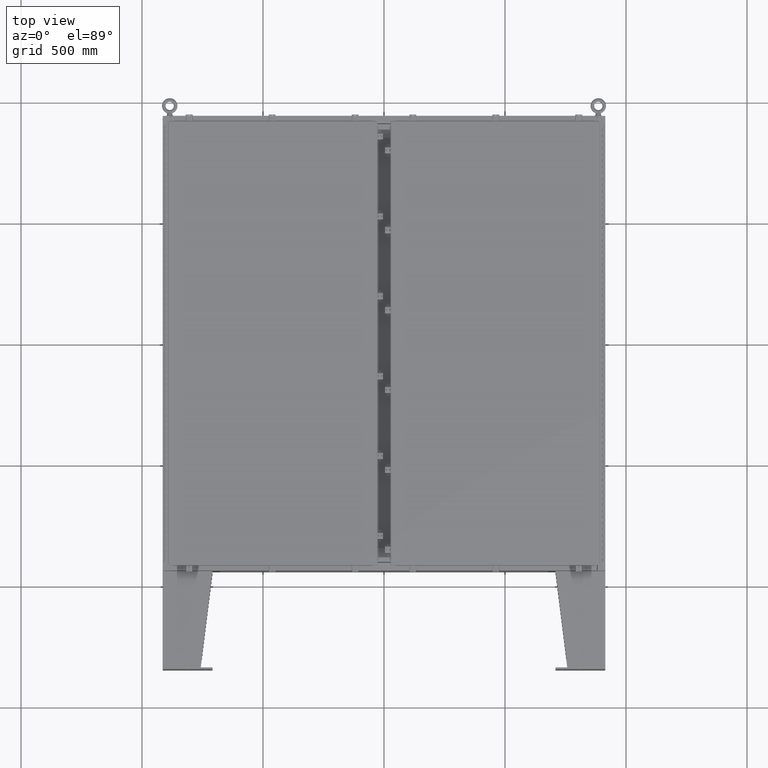
[diagram: clean part render]
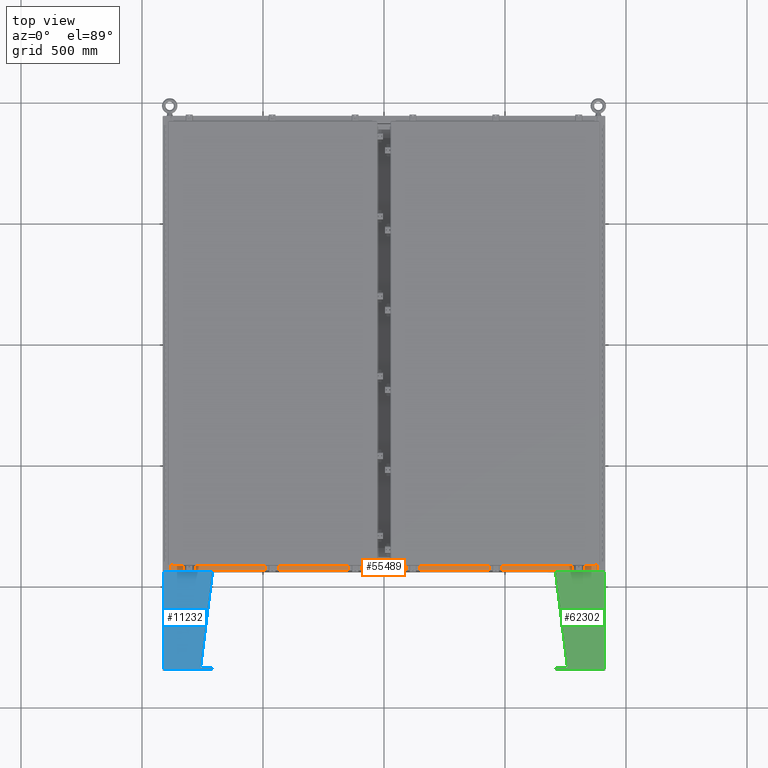
[diagram: same view with three faces highlighted in distinct colors, each labeled with its STEP entity id]
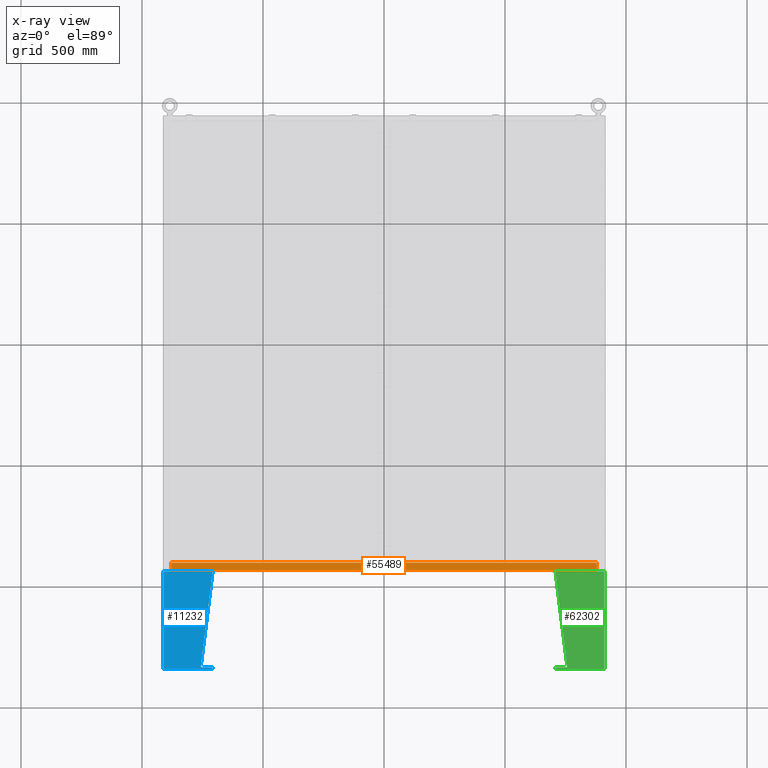
[diagram: x-ray of the same camera — body ghosted, the three highlighted faces saturated]
A machine part, top view with three faces highlighted in distinct colors.
The next image is the same camera in x-ray (body ghosted, the three faces saturated) — at least one of them is partly hidden behind the body in this view.
Their STEP definitions:

[orange] entity #55489 — the highlighted planar face has unit normal (0, -0, 1).
#680 = CARTESIAN_POINT ( 'NONE',  ( -1.750000000000002400, -1.287299999999986100, 7.999999999999996400 ) ) ;
#688 = VERTEX_POINT ( 'NONE', #680 ) ;
#1500 = DIRECTION ( 'NONE',  ( -1.003748580867023100E-031, 1.000000000000000000, -3.566381192773190000E-015 ) ) ;
#5526 = DIRECTION ( 'NONE',  ( 0.0000000000000000000, 3.566381192773190000E-015, 1.000000000000000000 ) ) ;
#5916 = VERTEX_POINT ( 'NONE', #26998 ) ;
#7072 = ORIENTED_EDGE ( 'NONE', *, *, #44481, .F. ) ;
#7223 = DIRECTION ( 'NONE',  ( -1.000000000000000000, 9.721131394294625500E-032, 0.0000000000000000000 ) ) ;
#8438 = CARTESIAN_POINT ( 'NONE',  ( 34.63720000000000700, -1.287299999999994800, 7.999999999999990200 ) ) ;
#9785 = LINE ( 'NONE', #69958, #60109 ) ;
#15739 = CARTESIAN_POINT ( 'NONE',  ( -34.63719999999998600, -0.08769999999996530600, 8.000000000000001800 ) ) ;
#20137 = LINE ( 'NONE', #62807, #66515 ) ;
#23539 = VECTOR ( 'NONE', #30975, 39.37007874015748100 ) ;
#23707 = CARTESIAN_POINT ( 'NONE',  ( 34.63720000000000700, -1.287299999999994800, 7.999999999999990200 ) ) ;
#26998 = CARTESIAN_POINT ( 'NONE',  ( 34.63720000000000700, -0.08770000000000026400, 8.000000000000001800 ) ) ;
#27357 = VERTEX_POINT ( 'NONE', #44006 ) ;
#27713 = ORIENTED_EDGE ( 'NONE', *, *, #71391, .T. ) ;
#28522 = VECTOR ( 'NONE', #62326, 39.37007874015748100 ) ;
#29492 = EDGE_CURVE ( 'NONE', #688, #39522, #80694, .T. ) ;
#30611 = ORIENTED_EDGE ( 'NONE', *, *, #34418, .F. ) ;
#30975 = DIRECTION ( 'NONE',  ( -1.000000000000000000, 9.721131394294625500E-032, 0.0000000000000000000 ) ) ;
#32162 = DIRECTION ( 'NONE',  ( -1.000000000000000000, -6.244223985518316900E-016, -2.366582715663035400E-030 ) ) ;
#34418 = EDGE_CURVE ( 'NONE', #27357, #36966, #77464, .T. ) ;
#36966 = VERTEX_POINT ( 'NONE', #76121 ) ;
#37075 = PLANE ( 'NONE',  #49226 ) ;
#38330 = LINE ( 'NONE', #75080, #23539 ) ;
#39522 = VERTEX_POINT ( 'NONE', #53075 ) ;
#43419 = ORIENTED_EDGE ( 'NONE', *, *, #29492, .F. ) ;
#44006 = CARTESIAN_POINT ( 'NONE',  ( 34.63720000000000700, -1.287299999999990300, 7.999999999999990200 ) ) ;
#44481 = EDGE_CURVE ( 'NONE', #36966, #688, #9785, .T. ) ;
#47574 = FACE_OUTER_BOUND ( 'NONE', #75326, .T. ) ;
#49226 = AXIS2_PLACEMENT_3D ( 'NONE', #81057, #5526, #49739 ) ;
#49739 = DIRECTION ( 'NONE',  ( 1.003748580867050900E-031, -1.000000000000000000, 3.566381192773190000E-015 ) ) ;
#53075 = CARTESIAN_POINT ( 'NONE',  ( -34.63719999999998600, -1.287299999999955500, 8.000000000000005300 ) ) ;
#54252 = ORIENTED_EDGE ( 'NONE', *, *, #79956, .F. ) ;
#55489 = ADVANCED_FACE ( 'NONE', ( #47574 ), #37075, .T. ) ;
#56347 = DIRECTION ( 'NONE',  ( 1.003748580867023100E-031, -1.000000000000000000, 3.566381192773190000E-015 ) ) ;
#60109 = VECTOR ( 'NONE', #32162, 39.37007874015748100 ) ;
#60714 = VECTOR ( 'NONE', #7223, 39.37007874015748100 ) ;
#62326 = DIRECTION ( 'NONE',  ( -1.000000000000000000, 9.721131394294625500E-032, 0.0000000000000000000 ) ) ;
#62798 = LINE ( 'NONE', #77118, #75554 ) ;
#62807 = CARTESIAN_POINT ( 'NONE',  ( 34.63720000000000700, -1.300300000000001300, 8.000000000000005300 ) ) ;
#66515 = VECTOR ( 'NONE', #56347, 39.37007874015748100 ) ;
#68888 = VERTEX_POINT ( 'NONE', #15739 ) ;
#69958 = CARTESIAN_POINT ( 'NONE',  ( -1.349971500130318000E-016, -1.287299999999986100, 7.999999999999996400 ) ) ;
#71391 = EDGE_CURVE ( 'NONE', #5916, #68888, #38330, .T. ) ;
#71984 = ORIENTED_EDGE ( 'NONE', *, *, #78620, .F. ) ;
#75080 = CARTESIAN_POINT ( 'NONE',  ( 7.764378988395785700E-030, -0.08769999999999589200, 8.000000000000001800 ) ) ;
#75326 = EDGE_LOOP ( 'NONE', ( #71984, #43419, #7072, #30611, #54252, #27713 ) ) ;
#75554 = VECTOR ( 'NONE', #1500, 39.37007874015748100 ) ;
#76121 = CARTESIAN_POINT ( 'NONE',  ( 1.749999999999997600, -1.287299999999981700, 7.999999999999996400 ) ) ;
#77118 = CARTESIAN_POINT ( 'NONE',  ( -34.63719999999998600, -0.07469999999996300400, 8.000000000000001800 ) ) ;
#77464 = LINE ( 'NONE', #8438, #60714 ) ;
#78620 = EDGE_CURVE ( 'NONE', #39522, #68888, #62798, .T. ) ;
#79956 = EDGE_CURVE ( 'NONE', #5916, #27357, #20137, .T. ) ;
#80694 = LINE ( 'NONE', #23707, #28522 ) ;
#81057 = CARTESIAN_POINT ( 'NONE',  ( -7.764378988395785700E-030, 3.059669752903974500E-014, 8.000000000000001800 ) ) ;

[blue] entity #11232 — the highlighted planar face has unit normal (0, 0, -1).
#1431 = VECTOR ( 'NONE', #72481, 39.37007874015748100 ) ;
#2144 = VERTEX_POINT ( 'NONE', #41538 ) ;
#9872 = LINE ( 'NONE', #59743, #76973 ) ;
#11232 = ADVANCED_FACE ( 'NONE', ( #56621 ), #45035, .F. ) ;
#11372 = DIRECTION ( 'NONE',  ( 3.550958521948399600E-015, -2.224516740755108100E-031, -1.000000000000000000 ) ) ;
#11694 = VERTEX_POINT ( 'NONE', #21381 ) ;
#12868 = LINE ( 'NONE', #30912, #29652 ) ;
#13890 = CARTESIAN_POINT ( 'NONE',  ( -7.999999999999999100, -7.999999999999923600, 0.03899999999999813300 ) ) ;
#14992 = LINE ( 'NONE', #33398, #27792 ) ;
#21332 = VERTEX_POINT ( 'NONE', #74636 ) ;
#21381 = CARTESIAN_POINT ( 'NONE',  ( -8.000000000000026600, -7.999999999999923600, 8.000999999999992300 ) ) ;
#21908 = CARTESIAN_POINT ( 'NONE',  ( -8.000000000000026600, 8.000000000000067500, 8.000999999999992300 ) ) ;
#22252 = LINE ( 'NONE', #78710, #1431 ) ;
#26205 = VERTEX_POINT ( 'NONE', #13890 ) ;
#27792 = VECTOR ( 'NONE', #58421, 39.37007874015748100 ) ;
#29652 = VECTOR ( 'NONE', #55901, 39.37007874015748100 ) ;
#30774 = LINE ( 'NONE', #71311, #43549 ) ;
#30912 = CARTESIAN_POINT ( 'NONE',  ( -8.000000000000026600, 8.000000000000067500, 8.000999999999992300 ) ) ;
#31295 = EDGE_LOOP ( 'NONE', ( #36323, #39320, #64177, #59302, #66921, #78955 ) ) ;
#33398 = CARTESIAN_POINT ( 'NONE',  ( -8.000000000000026600, -7.749999999999928900, 8.000999999999999400 ) ) ;
#33577 = LINE ( 'NONE', #72987, #50311 ) ;
#36323 = ORIENTED_EDGE ( 'NONE', *, *, #63911, .T. ) ;
#38885 = VERTEX_POINT ( 'NONE', #44511 ) ;
#39320 = ORIENTED_EDGE ( 'NONE', *, *, #53435, .T. ) ;
#41276 = DIRECTION ( 'NONE',  ( 9.466330862652141700E-029, -1.198498701752819500E-031, -1.000000000000000000 ) ) ;
#41538 = CARTESIAN_POINT ( 'NONE',  ( -8.000000000000012400, 7.857000000000068600, 0.03899999999997191100 ) ) ;
#43549 = VECTOR ( 'NONE', #77544, 39.37007874015748900 ) ;
#44107 = EDGE_CURVE ( 'NONE', #26205, #2144, #33577, .T. ) ;
#44511 = CARTESIAN_POINT ( 'NONE',  ( -8.000000000000026600, 7.857000000000068600, 8.000999999999999400 ) ) ;
#45035 = PLANE ( 'NONE',  #60257 ) ;
#46872 = EDGE_CURVE ( 'NONE', #26205, #11694, #22252, .T. ) ;
#50311 = VECTOR ( 'NONE', #60263, 39.37007874015748100 ) ;
#50680 = DIRECTION ( 'NONE',  ( 1.000000000000000000, 4.465013461865369200E-059, 3.550958521948399600E-015 ) ) ;
#53435 = EDGE_CURVE ( 'NONE', #81451, #38885, #30774, .T. ) ;
#55901 = DIRECTION ( 'NONE',  ( 0.0000000000000000000, 1.000000000000000000, 1.198498701752371100E-031 ) ) ;
#56621 = FACE_OUTER_BOUND ( 'NONE', #31295, .T. ) ;
#57716 = EDGE_CURVE ( 'NONE', #38885, #2144, #9872, .T. ) ;
#58421 = DIRECTION ( 'NONE',  ( 3.550958521948399600E-015, -2.224516740755108100E-031, -1.000000000000000000 ) ) ;
#59302 = ORIENTED_EDGE ( 'NONE', *, *, #44107, .F. ) ;
#59743 = CARTESIAN_POINT ( 'NONE',  ( -8.000000000000014200, 7.857000000000068600, 8.000999999999999400 ) ) ;
#60257 = AXIS2_PLACEMENT_3D ( 'NONE', #21908, #50680, #11372 ) ;
#60263 = DIRECTION ( 'NONE',  ( 0.0000000000000000000, 1.000000000000000000, 1.198498701752371100E-031 ) ) ;
#63911 = EDGE_CURVE ( 'NONE', #21332, #81451, #14992, .T. ) ;
#64177 = ORIENTED_EDGE ( 'NONE', *, *, #57716, .T. ) ;
#66921 = ORIENTED_EDGE ( 'NONE', *, *, #46872, .T. ) ;
#70358 = EDGE_CURVE ( 'NONE', #11694, #21332, #12868, .T. ) ;
#71311 = CARTESIAN_POINT ( 'NONE',  ( -8.000000000000021300, -7.749999999999858800, 6.052216497445924000 ) ) ;
#72481 = DIRECTION ( 'NONE',  ( -3.550958521948399600E-015, 2.224516740755108100E-031, 1.000000000000000000 ) ) ;
#72987 = CARTESIAN_POINT ( 'NONE',  ( -7.999999999999999100, 8.000000000000067500, 0.03899999999999813300 ) ) ;
#74636 = CARTESIAN_POINT ( 'NONE',  ( -8.000000000000026600, -7.749999999999928900, 8.001000000000008300 ) ) ;
#76973 = VECTOR ( 'NONE', #41276, 39.37007874015748100 ) ;
#77544 = DIRECTION ( 'NONE',  ( -4.399772607369957700E-016, 0.9922942345449394800, 0.1239038017531047900 ) ) ;
#78710 = CARTESIAN_POINT ( 'NONE',  ( -8.000000000000026600, -7.999999999999923600, 8.000999999999992300 ) ) ;
#78955 = ORIENTED_EDGE ( 'NONE', *, *, #70358, .T. ) ;
#80037 = CARTESIAN_POINT ( 'NONE',  ( -8.000000000000017800, -7.749999999999858800, 6.052216497445924000 ) ) ;
#81451 = VERTEX_POINT ( 'NONE', #80037 ) ;

[green] entity #62302 — the highlighted planar face has unit normal (0, 0, -1).
#2690 = VECTOR ( 'NONE', #16060, 39.37007874015748100 ) ;
#5252 = VECTOR ( 'NONE', #41062, 39.37007874015748100 ) ;
#5361 = PLANE ( 'NONE',  #15610 ) ;
#6227 = CARTESIAN_POINT ( 'NONE',  ( 8.000000000000008900, -7.999999999999862300, 8.001000000000013700 ) ) ;
#7604 = ORIENTED_EDGE ( 'NONE', *, *, #8307, .T. ) ;
#8307 = EDGE_CURVE ( 'NONE', #69831, #22970, #19629, .T. ) ;
#8883 = ORIENTED_EDGE ( 'NONE', *, *, #54680, .T. ) ;
#10149 = CARTESIAN_POINT ( 'NONE',  ( 8.000000000000010700, 7.857000000000068600, 8.001000000000013700 ) ) ;
#10508 = CARTESIAN_POINT ( 'NONE',  ( 8.000000000000008900, -7.999999999999862300, 8.001000000000013700 ) ) ;
#10896 = DIRECTION ( 'NONE',  ( 0.0000000000000000000, -1.000000000000000000, -1.198498701752371100E-031 ) ) ;
#13857 = ORIENTED_EDGE ( 'NONE', *, *, #62095, .F. ) ;
#14502 = CARTESIAN_POINT ( 'NONE',  ( 8.000000000000012400, 7.857000000000064200, 0.03900000000004622000 ) ) ;
#15362 = CARTESIAN_POINT ( 'NONE',  ( 8.000000000000008900, -7.999999999999862300, 8.001000000000013700 ) ) ;
#15610 = AXIS2_PLACEMENT_3D ( 'NONE', #62039, #62332, #24502 ) ;
#16060 = DIRECTION ( 'NONE',  ( -9.466330862652141700E-029, 1.198498701752819500E-031, 1.000000000000000000 ) ) ;
#16905 = VECTOR ( 'NONE', #65551, 39.37007874015748100 ) ;
#17378 = EDGE_CURVE ( 'NONE', #69831, #55742, #17835, .T. ) ;
#17835 = LINE ( 'NONE', #62183, #49340 ) ;
#19629 = LINE ( 'NONE', #14502, #2690 ) ;
#21028 = CARTESIAN_POINT ( 'NONE',  ( 8.000000000000028400, -7.749999999999858800, 8.001000000000049200 ) ) ;
#21215 = DIRECTION ( 'NONE',  ( 0.0000000000000000000, -1.000000000000000000, -1.198498701752371100E-031 ) ) ;
#22970 = VERTEX_POINT ( 'NONE', #10149 ) ;
#24502 = DIRECTION ( 'NONE',  ( 3.550958521948204300E-015, 1.724806627505603900E-032, 1.000000000000000000 ) ) ;
#24878 = VERTEX_POINT ( 'NONE', #70112 ) ;
#25063 = CARTESIAN_POINT ( 'NONE',  ( 8.000000000000021300, -7.749999999999858800, 6.052216497445976500 ) ) ;
#28720 = EDGE_CURVE ( 'NONE', #24878, #79321, #69180, .T. ) ;
#31992 = EDGE_CURVE ( 'NONE', #24878, #59023, #66809, .T. ) ;
#34753 = CARTESIAN_POINT ( 'NONE',  ( 8.000000000000021300, -7.749999999999858800, 6.052216497445976500 ) ) ;
#35576 = VECTOR ( 'NONE', #42523, 39.37007874015748100 ) ;
#35600 = LINE ( 'NONE', #15362, #16905 ) ;
#38920 = LINE ( 'NONE', #34753, #5252 ) ;
#41062 = DIRECTION ( 'NONE',  ( 4.399772607369686500E-016, 0.9922942345449394800, 0.1239038017531047900 ) ) ;
#42523 = DIRECTION ( 'NONE',  ( -3.550958521948204300E-015, -1.724806627505603900E-032, -1.000000000000000000 ) ) ;
#49340 = VECTOR ( 'NONE', #10896, 39.37007874015748100 ) ;
#51931 = VECTOR ( 'NONE', #21215, 39.37007874015748100 ) ;
#53307 = ORIENTED_EDGE ( 'NONE', *, *, #28720, .F. ) ;
#54680 = EDGE_CURVE ( 'NONE', #59023, #55742, #35600, .T. ) ;
#55742 = VERTEX_POINT ( 'NONE', #65212 ) ;
#56572 = FACE_OUTER_BOUND ( 'NONE', #74722, .T. ) ;
#59023 = VERTEX_POINT ( 'NONE', #10508 ) ;
#62039 = CARTESIAN_POINT ( 'NONE',  ( 8.000000000000008900, -7.999999999999862300, 8.001000000000013700 ) ) ;
#62095 = EDGE_CURVE ( 'NONE', #79321, #22970, #38920, .T. ) ;
#62183 = CARTESIAN_POINT ( 'NONE',  ( 7.999999999999999100, -7.999999999999932500, 0.03900000000001561900 ) ) ;
#62302 = ADVANCED_FACE ( 'NONE', ( #56572 ), #5361, .F. ) ;
#62332 = DIRECTION ( 'NONE',  ( -1.000000000000000000, -6.212279628615467300E-030, 3.550958521948204300E-015 ) ) ;
#63576 = CARTESIAN_POINT ( 'NONE',  ( 8.000000000000012400, 7.857000000000064200, 0.03900000000004622000 ) ) ;
#65212 = CARTESIAN_POINT ( 'NONE',  ( 7.999999999999999100, -7.999999999999923600, 0.03899999999999813300 ) ) ;
#65551 = DIRECTION ( 'NONE',  ( -3.550958521948204300E-015, -1.724806627505603900E-032, -1.000000000000000000 ) ) ;
#66809 = LINE ( 'NONE', #6227, #51931 ) ;
#67578 = ORIENTED_EDGE ( 'NONE', *, *, #17378, .F. ) ;
#69180 = LINE ( 'NONE', #21028, #35576 ) ;
#69831 = VERTEX_POINT ( 'NONE', #63576 ) ;
#70112 = CARTESIAN_POINT ( 'NONE',  ( 8.000000000000028400, -7.749999999999858800, 8.001000000000056300 ) ) ;
#74396 = ORIENTED_EDGE ( 'NONE', *, *, #31992, .T. ) ;
#74722 = EDGE_LOOP ( 'NONE', ( #53307, #74396, #8883, #67578, #7604, #13857 ) ) ;
#79321 = VERTEX_POINT ( 'NONE', #25063 ) ;